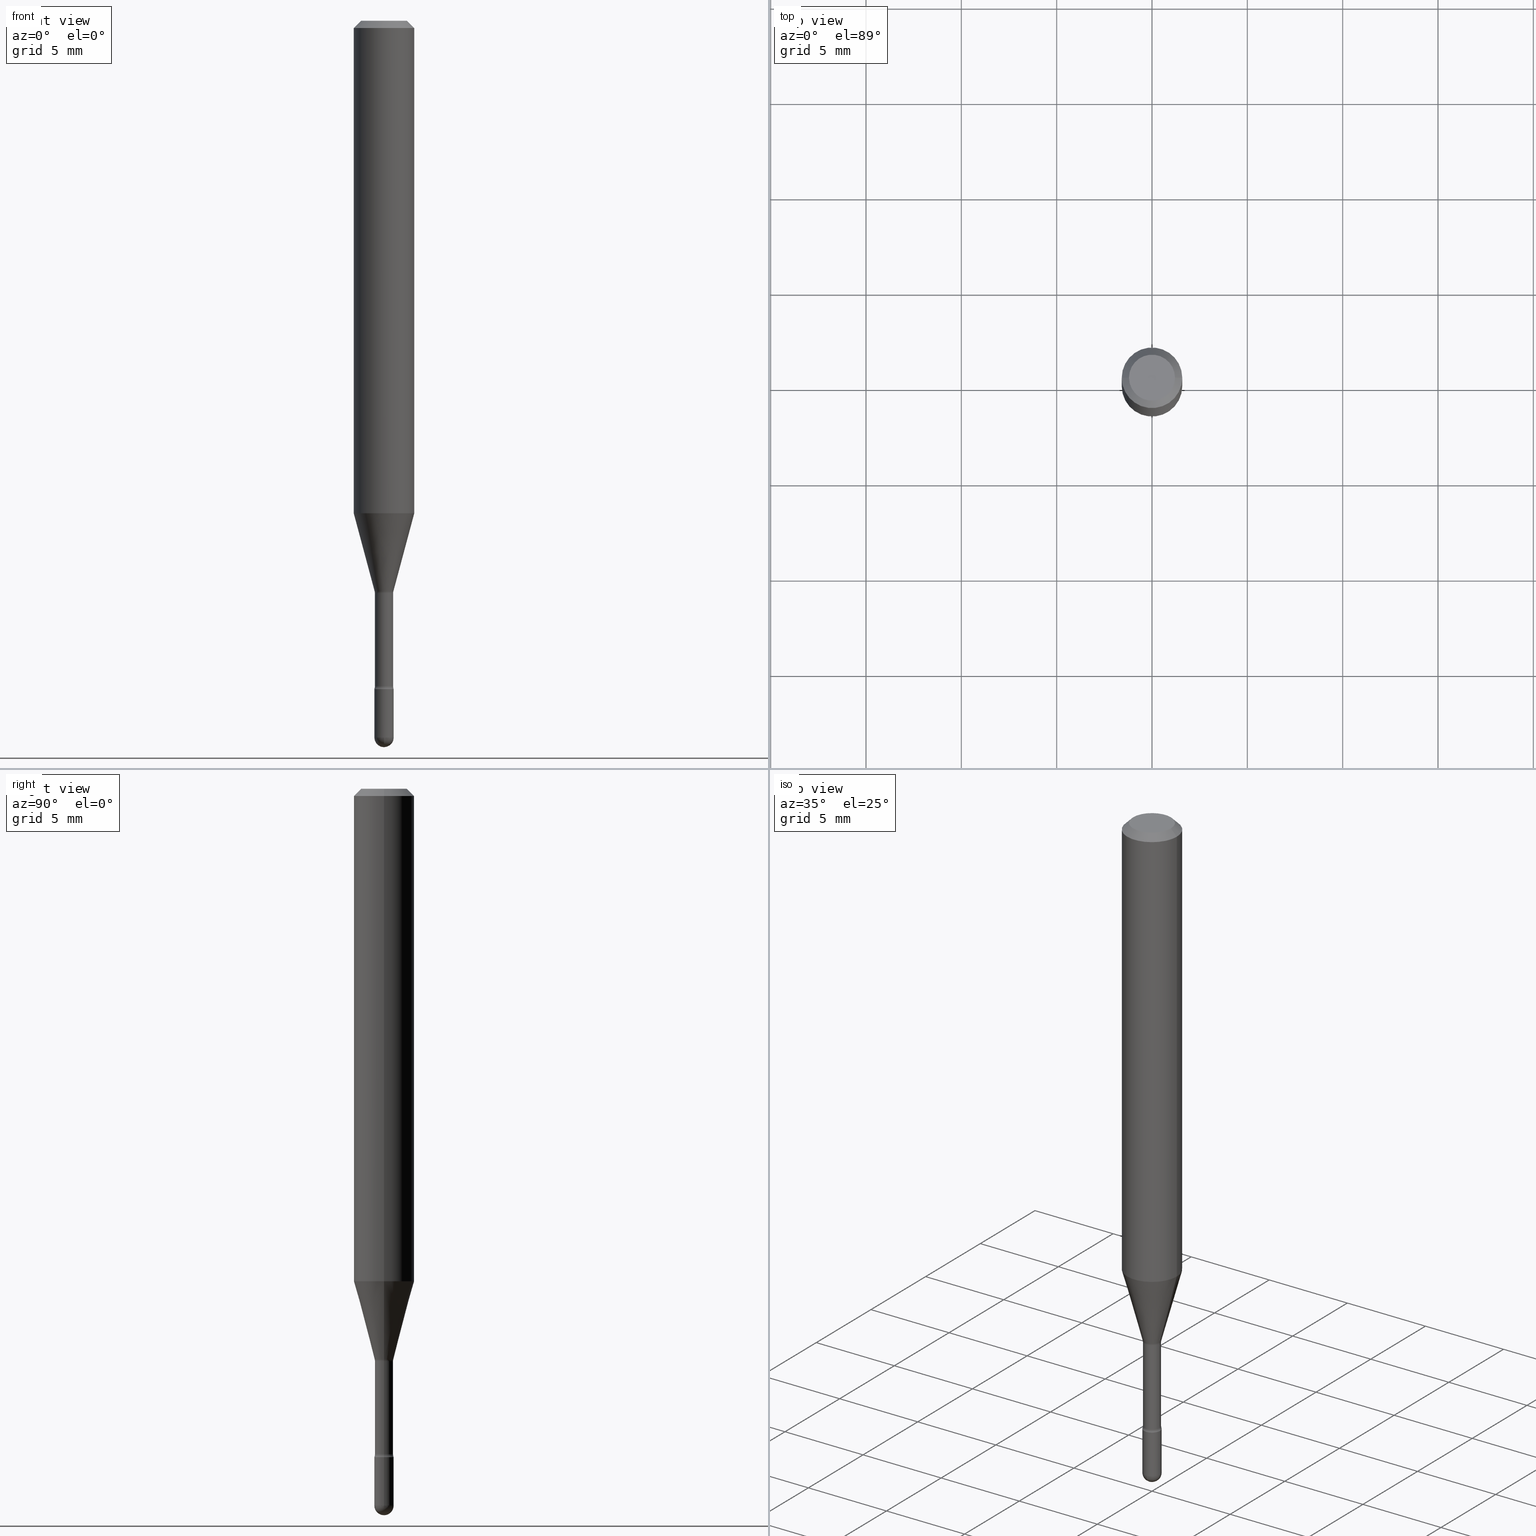
[diagram: canonical four-view strip — front | top / right | iso, engineering-drawing reading convention]
A machine part, canonical four-view strip (front | top / right | iso — engineering-drawing reading convention). The complete STEP part file that produces these views, byte-faithful:
ISO-10303-21;
HEADER;
FILE_DESCRIPTION (( 'STEP AP203' ),
    '1' );
FILE_NAME ('09313.STEP',
    '2024-04-09T22:23:41',
    ( '' ),
    ( '' ),
    'SwSTEP 2.0',
    'SolidWorks 2023',
    '' );
FILE_SCHEMA (( 'CONFIG_CONTROL_DESIGN' ));
ENDSEC;

DATA;
#1 = CARTESIAN_POINT ( 'NONE',  ( 1.396592535537590876E-16, 0.01999999999999518135, -1.380000000000000115 ) ) ;
#2 = UNCERTAINTY_MEASURE_WITH_UNIT (LENGTH_MEASURE( 1.000000000000000082E-05 ), #105, 'distance_accuracy_value', 'NONE');
#3 = ADVANCED_FACE ( 'NONE', ( #93 ), #226, .T. ) ;
#4 = DIRECTION ( 'NONE',  ( -0.2588190451025211281, 5.211531920934548675E-15, 0.9659258262890682012 ) ) ;
#5 = DIRECTION ( 'NONE',  ( -2.445468806185136597E-29, 3.491481338843145583E-15, 1.000000000000000000 ) ) ;
#6 = DIRECTION ( 'NONE',  ( -2.445468806185136597E-29, 3.491481338843145583E-15, 1.000000000000000000 ) ) ;
#7 = DIRECTION ( 'NONE',  ( 1.000000000000000000, -6.982962677686257244E-15, 4.883557194083109538E-29 ) ) ;
#8 = EDGE_CURVE ( 'NONE', #160, #27, #496, .T. ) ;
#9 = VECTOR ( 'NONE', #503, 39.37007874015748143 ) ;
#10 = DIRECTION ( 'NONE',  ( 2.445468806185136597E-29, -3.491481338843145583E-15, -1.000000000000000000 ) ) ;
#11 = AXIS2_PLACEMENT_3D ( 'NONE', #231, #187, #324 ) ;
#12 = ORIENTED_EDGE ( 'NONE', *, *, #63, .T. ) ;
#13 = CARTESIAN_POINT ( 'NONE',  ( 3.619293833154002365E-29, -5.167392381487854879E-15, -1.479999999999999982 ) ) ;
#14 = CARTESIAN_POINT ( 'NONE',  ( 2.890482472440055862E-29, -4.126842913412988651E-15, -1.181974787463810905 ) ) ;
#15 = ORIENTED_EDGE ( 'NONE', *, *, #209, .T. ) ;
#16 = CARTESIAN_POINT ( 'NONE',  ( 2.890482472440055862E-29, -4.126842913412988651E-15, -1.181974787463810905 ) ) ;
#17 = EDGE_CURVE ( 'NONE', #437, #112, #497, .T. ) ;
#18 = AXIS2_PLACEMENT_3D ( 'NONE', #335, #543, #62 ) ;
#19 = DIRECTION ( 'NONE',  ( 7.105427357601001859E-15, 1.000000000000000000, -3.491481338843145583E-15 ) ) ;
#20 = CONICAL_SURFACE ( 'NONE', #345, 0.06250000000000000000, 0.7853981633974483900 ) ;
#21 = CIRCLE ( 'NONE', #380, 0.04749999999999999362 ) ;
#22 = APPROVAL_DATE_TIME ( #418, #150 ) ;
#23 = LINE ( 'NONE', #371, #86 ) ;
#24 = APPROVAL_DATE_TIME ( #155, #484 ) ;
#25 = ORIENTED_EDGE ( 'NONE', *, *, #189, .F. ) ;
#26 = CARTESIAN_POINT ( 'NONE',  ( -1.169113584055446105E-44, 1.669184350826100908E-30, 4.780733988912460139E-16 ) ) ;
#27 = VERTEX_POINT ( 'NONE', #143 ) ;
#28 = CIRCLE ( 'NONE', #314, 0.02000000000000000042 ) ;
#29 = CC_DESIGN_SECURITY_CLASSIFICATION ( #547, ( #262 ) ) ;
#30 = DIRECTION ( 'NONE',  ( 2.438088387897960049E-29, -3.491481338843145188E-15, -1.000000000000000000 ) ) ;
#31 = ORIENTED_EDGE ( 'NONE', *, *, #63, .F. ) ;
#32 = ORIENTED_EDGE ( 'NONE', *, *, #234, .T. ) ;
#33 = PERSON_AND_ORGANIZATION_ROLE ( 'classification_officer' ) ;
#34 = EDGE_LOOP ( 'NONE', ( #545, #524, #340, #247 ) ) ;
#35 = DATE_AND_TIME ( #75, #393 ) ;
#36 = CARTESIAN_POINT ( 'NONE',  ( -0.04749999999999999362, 3.578768372314208041E-16, -8.274703207154778150E-17 ) ) ;
#37 = CC_DESIGN_PERSON_AND_ORGANIZATION_ASSIGNMENT ( #99, #373, ( #98 ) ) ;
#38 = ORIENTED_EDGE ( 'NONE', *, *, #360, .T. ) ;
#39 = DIRECTION ( 'NONE',  ( -2.445468806185136597E-29, 3.491481338843145583E-15, 1.000000000000000000 ) ) ;
#40 = EDGE_LOOP ( 'NONE', ( #338, #159, #50, #477 ) ) ;
#41 = CARTESIAN_POINT ( 'NONE',  ( 3.619293833154002365E-29, -5.167392381487854879E-15, -1.479999999999999982 ) ) ;
#42 = ORIENTED_EDGE ( 'NONE', *, *, #254, .F. ) ;
#43 = DIRECTION ( 'NONE',  ( 1.000000000000000000, -6.982962677686261977E-15, 0.000000000000000000 ) ) ;
#44 = DIRECTION ( 'NONE',  ( -2.445468806185136597E-29, 3.491481338843145583E-15, 1.000000000000000000 ) ) ;
#45 = CIRCLE ( 'NONE', #498, 0.06250000000000000000 ) ;
#46 = AXIS2_PLACEMENT_3D ( 'NONE', #94, #428, #291 ) ;
#47 = CARTESIAN_POINT ( 'NONE',  ( 2.023552857353652888E-45, -2.889097183224559242E-31, -8.274703207154537794E-17 ) ) ;
#48 = CARTESIAN_POINT ( 'NONE',  ( -0.02000000000000000042, -4.850709767393677259E-15, -1.380000000000000115 ) ) ;
#49 = PLANE ( 'NONE',  #346 ) ;
#50 = ORIENTED_EDGE ( 'NONE', *, *, #478, .T. ) ;
#51 = CIRCLE ( 'NONE', #378, 0.01880000000000000421 ) ;
#52 = AXIS2_PLACEMENT_3D ( 'NONE', #84, #451, #43 ) ;
#53 = CARTESIAN_POINT ( 'NONE',  ( -0.06250000000000000000, -3.106430912699308178E-15, -1.016909379709240335 ) ) ;
#54 = DIRECTION ( 'NONE',  ( 0.2588190451025211281, 1.565188264969623940E-15, 0.9659258262890682012 ) ) ;
#55 = CARTESIAN_POINT ( 'NONE',  ( 2.880988463921383680E-29, -4.113287985421298854E-15, -1.178092501787272983 ) ) ;
#56 = DIRECTION ( 'NONE',  ( 1.000000000000000000, -6.982962677686266711E-15, 0.000000000000000000 ) ) ;
#57 = DIRECTION ( 'NONE',  ( -1.000000000000000000, 6.982962677686265922E-15, -4.883557194083112340E-29 ) ) ;
#58 = COORDINATED_UNIVERSAL_TIME_OFFSET ( 5, 0, .BEHIND. ) ;
#59 = FACE_OUTER_BOUND ( 'NONE', #435, .T. ) ;
#60 = AXIS2_PLACEMENT_3D ( 'NONE', #16, #191, #329 ) ;
#61 =( NAMED_UNIT ( * ) SI_UNIT ( $, .STERADIAN. ) SOLID_ANGLE_UNIT ( ) );
#62 = DIRECTION ( 'NONE',  ( 1.000000000000000000, -6.982962677686284065E-15, 0.000000000000000000 ) ) ;
#63 = EDGE_CURVE ( 'NONE', #437, #432, #306, .T. ) ;
#64 = PERSON_AND_ORGANIZATION ( #140, #290 ) ;
#65 = ORIENTED_EDGE ( 'NONE', *, *, #427, .F. ) ;
#66 = CARTESIAN_POINT ( 'NONE',  ( 2.486820166796023749E-29, -3.550520122549371189E-15, -1.016909379709240335 ) ) ;
#67 = ORIENTED_EDGE ( 'NONE', *, *, #334, .F. ) ;
#68 = CARTESIAN_POINT ( 'NONE',  ( 3.316907271900976096E-16, 0.04749999999999999362, 3.181781981480094004E-17 ) ) ;
#69 = EDGE_LOOP ( 'NONE', ( #300, #364 ) ) ;
#70 = AXIS2_PLACEMENT_3D ( 'NONE', #68, #30, #419 ) ;
#71 = ORIENTED_EDGE ( 'NONE', *, *, #420, .F. ) ;
#72 = DIRECTION ( 'NONE',  ( 1.000000000000000000, -6.982962677686258822E-15, 4.883557194083109538E-29 ) ) ;
#73 = APPLICATION_CONTEXT ( 'configuration controlled 3d designs of mechanical parts and assemblies' ) ;
#74 = ORIENTED_EDGE ( 'NONE', *, *, #372, .T. ) ;
#75 = CALENDAR_DATE ( 2024, 9, 4 ) ;
#76 = LINE ( 'NONE', #392, #366 ) ;
#77 = ORIENTED_EDGE ( 'NONE', *, *, #278, .T. ) ;
#78 = FACE_OUTER_BOUND ( 'NONE', #444, .T. ) ;
#79 = AXIS2_PLACEMENT_3D ( 'NONE', #551, #471, #56 ) ;
#80 = LOCAL_TIME ( 18, 23, 41.00000000000000000, #377 ) ;
#81 = VERTEX_POINT ( 'NONE', #413 ) ;
#82 = CARTESIAN_POINT ( 'NONE',  ( 3.619293833154002365E-29, -5.167392381487854879E-15, -1.479999999999999982 ) ) ;
#83 = ADVANCED_FACE ( 'NONE', ( #188 ), #461, .T. ) ;
#84 = CARTESIAN_POINT ( 'NONE',  ( 2.880988463921383680E-29, -4.113287985421298854E-15, -1.178092501787272983 ) ) ;
#85 = CARTESIAN_POINT ( 'NONE',  ( 3.374746952535488593E-29, -4.818244247603541543E-15, -1.380000000000000115 ) ) ;
#86 = VECTOR ( 'NONE', #288, 39.37007874015748143 ) ;
#87 = CIRCLE ( 'NONE', #79, 0.06250000000000000000 ) ;
#88 = DIRECTION ( 'NONE',  ( 1.000000000000000000, -6.982962677686284065E-15, 0.000000000000000000 ) ) ;
#89 = DIRECTION ( 'NONE',  ( 6.982962677686265922E-15, 1.000000000000000000, 0.000000000000000000 ) ) ;
#90 = ORIENTED_EDGE ( 'NONE', *, *, #372, .F. ) ;
#91 = CARTESIAN_POINT ( 'NONE',  ( 2.890482472440055862E-29, -4.126842913412987863E-15, -1.181974787463810683 ) ) ;
#92 = AXIS2_PLACEMENT_3D ( 'NONE', #91, #273, #283 ) ;
#93 = FACE_OUTER_BOUND ( 'NONE', #244, .T. ) ;
#94 = CARTESIAN_POINT ( 'NONE',  ( 0.000000000000000000, 0.000000000000000000, 0.000000000000000000 ) ) ;
#95 = CARTESIAN_POINT ( 'NONE',  ( 0.02000000000000000042, -1.396592535537253145E-16, 9.752353551591871936E-31 ) ) ;
#96 = ORIENTED_EDGE ( 'NONE', *, *, #382, .F. ) ;
#97 = DIRECTION ( 'NONE',  ( -2.445468806185136597E-29, 3.491481338843145583E-15, 1.000000000000000000 ) ) ;
#98 = PRODUCT ( '09313', '09313', '', ( #285 ) ) ;
#99 = PERSON_AND_ORGANIZATION ( #140, #290 ) ;
#100 = CARTESIAN_POINT ( 'NONE',  ( -0.06250000000000000000, 4.440892098500642925E-16, 4.780733988912429571E-16 ) ) ;
#101 = EDGE_CURVE ( 'NONE', #472, #107, #455, .T. ) ;
#102 = CARTESIAN_POINT ( 'NONE',  ( -0.01880000000000000421, -4.328698728913427470E-15, -1.181974787463810683 ) ) ;
#103 = CIRCLE ( 'NONE', #92, 0.01880000000000000421 ) ;
#104 = CIRCLE ( 'NONE', #124, 0.02000000000000003164 ) ;
#105 =( CONVERSION_BASED_UNIT ( 'INCH', #151 ) LENGTH_UNIT ( ) NAMED_UNIT ( #385 ) );
#106 = CYLINDRICAL_SURFACE ( 'NONE', #220, 0.06250000000000000000 ) ;
#107 = VERTEX_POINT ( 'NONE', #251 ) ;
#108 = APPROVAL_DATE_TIME ( #560, #246 ) ;
#109 = DIRECTION ( 'NONE',  ( -2.445468806185136597E-29, 3.491481338843145583E-15, 1.000000000000000000 ) ) ;
#110 = ORIENTED_EDGE ( 'NONE', *, *, #532, .F. ) ;
#111 = SHAPE_DEFINITION_REPRESENTATION ( #540, #268 ) ;
#112 = VERTEX_POINT ( 'NONE', #102 ) ;
#113 = FACE_OUTER_BOUND ( 'NONE', #408, .T. ) ;
#114 = ORIENTED_EDGE ( 'NONE', *, *, #531, .F. ) ;
#115 = AXIS2_PLACEMENT_3D ( 'NONE', #530, #492, #134 ) ;
#116 = ORIENTED_EDGE ( 'NONE', *, *, #120, .F. ) ;
#117 = DIRECTION ( 'NONE',  ( 1.000000000000000000, -6.982962677686265922E-15, 4.876176775795935793E-29 ) ) ;
#118 = VERTEX_POINT ( 'NONE', #196 ) ;
#119 = DATE_TIME_ROLE ( 'classification_date' ) ;
#120 = EDGE_CURVE ( 'NONE', #204, #336, #211, .T. ) ;
#121 = AXIS2_PLACEMENT_3D ( 'NONE', #55, #317, #233 ) ;
#122 = ORIENTED_EDGE ( 'NONE', *, *, #178, .F. ) ;
#123 = AXIS2_PLACEMENT_3D ( 'NONE', #157, #512, #296 ) ;
#124 = AXIS2_PLACEMENT_3D ( 'NONE', #145, #458, #462 ) ;
#125 = EDGE_CURVE ( 'NONE', #81, #550, #250, .T. ) ;
#126 = DIRECTION ( 'NONE',  ( -2.445468806185136597E-29, 3.491481338843145583E-15, 1.000000000000000000 ) ) ;
#127 = EDGE_CURVE ( 'NONE', #472, #112, #205, .T. ) ;
#128 = CARTESIAN_POINT ( 'NONE',  ( -1.169113584055446105E-44, 1.669184350826100908E-30, 4.780733988912460139E-16 ) ) ;
#129 = TOROIDAL_SURFACE ( 'NONE', #464, 0.03380000000000000365, 0.01499999999999998904 ) ;
#130 = CARTESIAN_POINT ( 'NONE',  ( 0.01931111260566397911, -4.248136764011247491E-15, -1.178092501787272983 ) ) ;
#131 = CC_DESIGN_APPROVAL ( #246, ( #547 ) ) ;
#132 = ADVANCED_FACE ( 'NONE', ( #468 ), #546, .T. ) ;
#133 = ORIENTED_EDGE ( 'NONE', *, *, #127, .T. ) ;
#134 = DIRECTION ( 'NONE',  ( 1.000000000000000000, -6.982962677686243045E-15, 0.000000000000000000 ) ) ;
#135 = ORIENTED_EDGE ( 'NONE', *, *, #185, .T. ) ;
#136 = FACE_OUTER_BOUND ( 'NONE', #388, .T. ) ;
#137 = CARTESIAN_POINT ( 'NONE',  ( 3.619293833154002365E-29, -5.167392381487854879E-15, -1.479999999999999982 ) ) ;
#138 = EDGE_CURVE ( 'NONE', #533, #160, #237, .T. ) ;
#139 = ORIENTED_EDGE ( 'NONE', *, *, #189, .T. ) ;
#140 = PERSON ( 'UNSPECIFIED', 'UNSPECIFIED', 'UNSPECIFIED', ('UNSPECIFIED'), ('UNSPECIFIED'), ('UNSPECIFIED') ) ;
#141 = DIRECTION ( 'NONE',  ( 1.000000000000000000, -6.982962677686258033E-15, 0.000000000000000000 ) ) ;
#142 = AXIS2_PLACEMENT_3D ( 'NONE', #400, #350, #436 ) ;
#143 = CARTESIAN_POINT ( 'NONE',  ( 0.06250000000000000000, -4.888073874380391431E-16, -0.01500000000000008271 ) ) ;
#144 = EDGE_CURVE ( 'NONE', #160, #533, #483, .T. ) ;
#145 = CARTESIAN_POINT ( 'NONE',  ( 3.619293833154002365E-29, -5.167392381487854879E-15, -1.479999999999999982 ) ) ;
#146 = DIRECTION ( 'NONE',  ( -1.000000000000000000, 6.982962677686266711E-15, 0.000000000000000000 ) ) ;
#147 = CALENDAR_DATE ( 2024, 9, 4 ) ;
#148 = FACE_OUTER_BOUND ( 'NONE', #40, .T. ) ;
#149 = DIRECTION ( 'NONE',  ( -2.445468806185136597E-29, 3.491481338843145583E-15, 1.000000000000000000 ) ) ;
#150 = APPROVAL ( #287, 'UNSPECIFIED' ) ;
#151 = LENGTH_MEASURE_WITH_UNIT ( LENGTH_MEASURE( 0.02539999999999999897 ), #539 );
#152 = CARTESIAN_POINT ( 'NONE',  ( -1.169113584055446105E-44, 1.669184350826100908E-30, 4.780733988912460139E-16 ) ) ;
#153 = DIRECTION ( 'NONE',  ( 1.000000000000000000, -6.982962677686284065E-15, 0.000000000000000000 ) ) ;
#154 = CIRCLE ( 'NONE', #172, 0.01931111260566397911 ) ;
#155 = DATE_AND_TIME ( #421, #80 ) ;
#156 = DIRECTION ( 'NONE',  ( 1.000000000000000000, -6.982962677686267499E-15, 4.839830652673567839E-29 ) ) ;
#157 = CARTESIAN_POINT ( 'NONE',  ( 3.360370590718576112E-29, -4.797718613059664510E-15, -1.374121224617320447 ) ) ;
#158 = ORIENTED_EDGE ( 'NONE', *, *, #185, .F. ) ;
#159 = ORIENTED_EDGE ( 'NONE', *, *, #263, .F. ) ;
#160 = VERTEX_POINT ( 'NONE', #467 ) ;
#161 = CYLINDRICAL_SURFACE ( 'NONE', #142, 0.02000000000000000042 ) ;
#162 = TOROIDAL_SURFACE ( 'NONE', #60, 0.03380000000000000365, 0.01499999999999998904 ) ;
#163 = ORIENTED_EDGE ( 'NONE', *, *, #438, .T. ) ;
#164 = DIRECTION ( 'NONE',  ( -2.445468806185136597E-29, 3.491481338843145583E-15, 1.000000000000000000 ) ) ;
#165 = EDGE_CURVE ( 'NONE', #27, #303, #45, .T. ) ;
#166 = ORIENTED_EDGE ( 'NONE', *, *, #197, .T. ) ;
#167 = CARTESIAN_POINT ( 'NONE',  ( 3.360370590718576112E-29, -4.797718613059664510E-15, -1.374121224617320447 ) ) ;
#168 = DIRECTION ( 'NONE',  ( 1.000000000000000000, -6.982962677686267499E-15, 4.884662768193073002E-29 ) ) ;
#169 = ADVANCED_FACE ( 'NONE', ( #341 ), #106, .T. ) ;
#170 = AXIS2_PLACEMENT_3D ( 'NONE', #493, #57, #89 ) ;
#171 = EDGE_LOOP ( 'NONE', ( #508, #139, #555, #553 ) ) ;
#172 = AXIS2_PLACEMENT_3D ( 'NONE', #526, #126, #312 ) ;
#173 = CARTESIAN_POINT ( 'NONE',  ( -0.01931111260566397911, -3.541252595153304499E-15, -1.178092501787272983 ) ) ;
#174 = FACE_OUTER_BOUND ( 'NONE', #198, .T. ) ;
#175 = ADVANCED_FACE ( 'NONE', ( #514 ), #504, .F. ) ;
#176 = ADVANCED_FACE ( 'NONE', ( #113 ), #391, .F. ) ;
#177 = DIRECTION ( 'NONE',  ( 1.000000000000000000, -6.982962677686267499E-15, 4.839830652673567839E-29 ) ) ;
#178 = EDGE_CURVE ( 'NONE', #442, #351, #245, .T. ) ;
#179 = CARTESIAN_POINT ( 'NONE',  ( 0.04749999999999999362, -4.035134999187581581E-16, -8.274703207154280181E-17 ) ) ;
#180 = CARTESIAN_POINT ( 'NONE',  ( -0.02000000000000000042, 1.421085471520200401E-16, -9.837870180509812545E-31 ) ) ;
#181 = CC_DESIGN_APPROVAL ( #150, ( #405 ) ) ;
#182 = DIRECTION ( 'NONE',  ( 1.000000000000000000, -6.982962677686259611E-15, 0.000000000000000000 ) ) ;
#183 = EDGE_LOOP ( 'NONE', ( #31, #397, #210, #429 ) ) ;
#184 = LINE ( 'NONE', #276, #529 ) ;
#185 = EDGE_CURVE ( 'NONE', #253, #515, #528, .T. ) ;
#186 = ORIENTED_EDGE ( 'NONE', *, *, #360, .F. ) ;
#187 = DIRECTION ( 'NONE',  ( -2.445468806185136597E-29, 3.491481338843145583E-15, 1.000000000000000000 ) ) ;
#188 = FACE_OUTER_BOUND ( 'NONE', #425, .T. ) ;
#189 = EDGE_CURVE ( 'NONE', #472, #442, #401, .T. ) ;
#190 = CLOSED_SHELL ( 'NONE', ( #215, #83, #518, #240, #259 ) ) ;
#191 = DIRECTION ( 'NONE',  ( -2.445468806185136597E-29, 3.491481338843145583E-15, 1.000000000000000000 ) ) ;
#192 = APPLICATION_CONTEXT ( 'configuration controlled 3d designs of mechanical parts and assemblies' ) ;
#193 = AXIS2_PLACEMENT_3D ( 'NONE', #363, #321, #495 ) ;
#194 = PERSON_AND_ORGANIZATION_ROLE ( 'creator' ) ;
#195 = CYLINDRICAL_SURFACE ( 'NONE', #416, 0.01880000000000000768 ) ;
#196 = CARTESIAN_POINT ( 'NONE',  ( 0.02000000000000000736, -4.957903501157267351E-15, -1.380000000000000115 ) ) ;
#197 = EDGE_CURVE ( 'NONE', #107, #118, #227, .T. ) ;
#198 = EDGE_LOOP ( 'NONE', ( #292, #509, #298, #74, #386 ) ) ;
#199 = DIRECTION ( 'NONE',  ( -2.445468806185136597E-29, 3.491481338843145583E-15, 1.000000000000000000 ) ) ;
#200 = DATE_AND_TIME ( #147, #505 ) ;
#201 = CLOSED_SHELL ( 'NONE', ( #313, #293, #176, #406, #450, #132, #485, #169, #3, #402, #482, #175, #412, #422 ) ) ;
#202 = DIRECTION ( 'NONE',  ( -2.445468806185136597E-29, 3.491481338843145583E-15, 1.000000000000000000 ) ) ;
#203 = AXIS2_PLACEMENT_3D ( 'NONE', #85, #480, #305 ) ;
#204 = VERTEX_POINT ( 'NONE', #396 ) ;
#205 = LINE ( 'NONE', #424, #9 ) ;
#206 = EDGE_LOOP ( 'NONE', ( #389, #186, #469, #77 ) ) ;
#207 = COORDINATED_UNIVERSAL_TIME_OFFSET ( 5, 0, .BEHIND. ) ;
#208 = FACE_OUTER_BOUND ( 'NONE', #398, .T. ) ;
#209 = EDGE_CURVE ( 'NONE', #336, #204, #280, .T. ) ;
#210 = ORIENTED_EDGE ( 'NONE', *, *, #325, .T. ) ;
#211 = CIRCLE ( 'NONE', #279, 0.02000000000000000042 ) ;
#212 = AXIS2_PLACEMENT_3D ( 'NONE', #66, #97, #330 ) ;
#213 = CIRCLE ( 'NONE', #362, 0.02000000000000003164 ) ;
#214 = ORIENTED_EDGE ( 'NONE', *, *, #320, .F. ) ;
#215 = ADVANCED_FACE ( 'NONE', ( #208 ), #161, .T. ) ;
#216 = EDGE_LOOP ( 'NONE', ( #256, #475, #295, #42 ) ) ;
#217 = DIRECTION ( 'NONE',  ( 1.000000000000000000, -6.982962677686284065E-15, 0.000000000000000000 ) ) ;
#218 = EDGE_LOOP ( 'NONE', ( #65, #394, #562, #96 ) ) ;
#219 = DIRECTION ( 'NONE',  ( 1.000000000000000000, -6.982962677686267499E-15, 4.884662768193073002E-29 ) ) ;
#220 = AXIS2_PLACEMENT_3D ( 'NONE', #26, #199, #375 ) ;
#221 = DIRECTION ( 'NONE',  ( -2.445468806185136597E-29, 3.491481338843145583E-15, 1.000000000000000000 ) ) ;
#222 = DIRECTION ( 'NONE',  ( -2.438088387897960049E-29, 3.491481338843145188E-15, 1.000000000000000000 ) ) ;
#223 = DIRECTION ( 'NONE',  ( -2.445468806185136597E-29, 3.491481338843145583E-15, 1.000000000000000000 ) ) ;
#224 = DIRECTION ( 'NONE',  ( -2.438088387897960049E-29, 3.491481338843145188E-15, 1.000000000000000000 ) ) ;
#225 = ORIENTED_EDGE ( 'NONE', *, *, #427, .T. ) ;
#226 = CONICAL_SURFACE ( 'NONE', #270, 0.06250000000000000000, 0.7853981633974483900 ) ;
#227 = CIRCLE ( 'NONE', #289, 0.02000000000000000042 ) ;
#228 = DIRECTION ( 'NONE',  ( -2.445468806185136597E-29, 3.491481338843145583E-15, 1.000000000000000000 ) ) ;
#229 = CARTESIAN_POINT ( 'NONE',  ( 2.890482472440055862E-29, -4.126842913412987863E-15, -1.181974787463810683 ) ) ;
#230 = ORIENTED_EDGE ( 'NONE', *, *, #499, .F. ) ;
#231 = CARTESIAN_POINT ( 'NONE',  ( 3.619293833154002365E-29, -5.167392381487854879E-15, -1.479999999999999982 ) ) ;
#232 = CARTESIAN_POINT ( 'NONE',  ( 3.669058375566884284E-29, -5.235997361465570604E-15, -1.500000000000000222 ) ) ;
#233 = DIRECTION ( 'NONE',  ( 1.000000000000000000, -6.982962677686261977E-15, 0.000000000000000000 ) ) ;
#234 = EDGE_CURVE ( 'NONE', #550, #431, #474, .T. ) ;
#235 = CARTESIAN_POINT ( 'NONE',  ( -0.03380000000000002447, -4.557555168372750276E-15, -1.374121224617320447 ) ) ;
#236 = CALENDAR_DATE ( 2024, 9, 4 ) ;
#237 = CIRCLE ( 'NONE', #252, 0.06250000000000000000 ) ;
#238 = CC_DESIGN_DATE_AND_TIME_ASSIGNMENT ( #200, #328, ( #405 ) ) ;
#239 = CARTESIAN_POINT ( 'NONE',  ( 3.374746952535488593E-29, -4.818244247603541543E-15, -1.380000000000000115 ) ) ;
#240 = ADVANCED_FACE ( 'NONE', ( #344 ), #489, .T. ) ;
#241 = APPLICATION_PROTOCOL_DEFINITION ( 'international standard', 'config_control_design', 1994, #192 ) ;
#242 = DIRECTION ( 'NONE',  ( -2.445468806185136597E-29, 3.491481338843145583E-15, 1.000000000000000000 ) ) ;
#243 = COORDINATED_UNIVERSAL_TIME_OFFSET ( 5, 0, .BEHIND. ) ;
#244 = EDGE_LOOP ( 'NONE', ( #71, #158, #411, #494 ) ) ;
#245 = LINE ( 'NONE', #255, #409 ) ;
#246 = APPROVAL ( #390, 'UNSPECIFIED' ) ;
#247 = ORIENTED_EDGE ( 'NONE', *, *, #304, .F. ) ;
#248 = PERSON_AND_ORGANIZATION ( #140, #290 ) ;
#249 = MANIFOLD_SOLID_BREP ( 'Body-Move/Copy2[2]', #201 ) ;
#250 = CIRCLE ( 'NONE', #18, 0.02000000000000000042 ) ;
#251 = CARTESIAN_POINT ( 'NONE',  ( -0.02000000000000000736, -4.676135700451519802E-15, -1.380000000000000115 ) ) ;
#252 = AXIS2_PLACEMENT_3D ( 'NONE', #337, #149, #552 ) ;
#253 = VERTEX_POINT ( 'NONE', #36 ) ;
#254 = EDGE_CURVE ( 'NONE', #253, #303, #76, .T. ) ;
#255 = CARTESIAN_POINT ( 'NONE',  ( 0.01880000000000000768, -1.312796983405001992E-16, 4.780733988912470000E-16 ) ) ;
#256 = ORIENTED_EDGE ( 'NONE', *, *, #438, .F. ) ;
#257 = DIRECTION ( 'NONE',  ( 1.000000000000000000, -6.982962677686258033E-15, 0.000000000000000000 ) ) ;
#258 = ORIENTED_EDGE ( 'NONE', *, *, #331, .F. ) ;
#259 = ADVANCED_FACE ( 'NONE', ( #174 ), #353, .T. ) ;
#260 = CYLINDRICAL_SURFACE ( 'NONE', #307, 0.01880000000000000768 ) ;
#261 = AXIS2_PLACEMENT_3D ( 'NONE', #82, #520, #301 ) ;
#262 = PRODUCT_DEFINITION_FORMATION_WITH_SPECIFIED_SOURCE ( 'ANY', '', #98, .NOT_KNOWN. ) ;
#263 = EDGE_CURVE ( 'NONE', #432, #437, #154, .T. ) ;
#264 = ORIENTED_EDGE ( 'NONE', *, *, #304, .T. ) ;
#265 = CARTESIAN_POINT ( 'NONE',  ( 3.374746952535488593E-29, -4.818244247603541543E-15, -1.380000000000000115 ) ) ;
#266 = ORIENTED_EDGE ( 'NONE', *, *, #531, .T. ) ;
#267 = DIRECTION ( 'NONE',  ( -0.7071067811865475727, 2.468850131082257455E-15, -0.7071067811865474617 ) ) ;
#268 = ADVANCED_BREP_SHAPE_REPRESENTATION ( '09313', ( #443, #249, #46 ), #441 ) ;
#269 = CARTESIAN_POINT ( 'NONE',  ( -0.02000000000000000042, -4.850709767393677259E-15, -1.479999999999999982 ) ) ;
#270 = AXIS2_PLACEMENT_3D ( 'NONE', #322, #10, #319 ) ;
#271 = VECTOR ( 'NONE', #453, 39.37007874015748143 ) ;
#272 = DIRECTION ( 'NONE',  ( 1.000000000000000000, -6.982962677686266711E-15, 4.852736867747366207E-29 ) ) ;
#273 = DIRECTION ( 'NONE',  ( -2.445468806185136597E-29, 3.491481338843145583E-15, 1.000000000000000000 ) ) ;
#274 = FACE_OUTER_BOUND ( 'NONE', #383, .T. ) ;
#275 = CARTESIAN_POINT ( 'NONE',  ( 0.01931111260566397911, -4.248136764011247491E-15, -1.178092501787272983 ) ) ;
#276 = CARTESIAN_POINT ( 'NONE',  ( -0.01931111260566397911, -3.976074277607301213E-15, -1.178092501787272983 ) ) ;
#277 = ORIENTED_EDGE ( 'NONE', *, *, #525, .T. ) ;
#278 = EDGE_CURVE ( 'NONE', #118, #107, #522, .T. ) ;
#279 = AXIS2_PLACEMENT_3D ( 'NONE', #239, #109, #153 ) ;
#280 = CIRCLE ( 'NONE', #447, 0.02000000000000000042 ) ;
#281 = PERSON_AND_ORGANIZATION ( #140, #290 ) ;
#282 = AXIS2_PLACEMENT_3D ( 'NONE', #128, #6, #272 ) ;
#283 = DIRECTION ( 'NONE',  ( 1.000000000000000000, -6.982962677686259611E-15, 0.000000000000000000 ) ) ;
#284 = CARTESIAN_POINT ( 'NONE',  ( -0.03380000000000000365, -3.886679468726075206E-15, -1.181974787463810905 ) ) ;
#285 = MECHANICAL_CONTEXT ( 'NONE', #73, 'mechanical' ) ;
#286 = ORIENTED_EDGE ( 'NONE', *, *, #101, .T. ) ;
#287 = APPROVAL_STATUS ( 'not_yet_approved' ) ;
#288 = DIRECTION ( 'NONE',  ( 0.7071067811865475727, -7.319954787623256045E-15, -0.7071067811865474617 ) ) ;
#289 = AXIS2_PLACEMENT_3D ( 'NONE', #265, #554, #516 ) ;
#290 = ORGANIZATION ( 'UNSPECIFIED', 'UNSPECIFIED', '' ) ;
#291 = DIRECTION ( 'NONE',  ( 1.000000000000000000, 0.000000000000000000, 0.000000000000000000 ) ) ;
#292 = ORIENTED_EDGE ( 'NONE', *, *, #463, .F. ) ;
#293 = ADVANCED_FACE ( 'NONE', ( #78 ), #260, .T. ) ;
#294 = ORIENTED_EDGE ( 'NONE', *, *, #165, .F. ) ;
#295 = ORIENTED_EDGE ( 'NONE', *, *, #165, .T. ) ;
#296 = DIRECTION ( 'NONE',  ( 1.000000000000000000, -6.982962677686258822E-15, 4.883557194083109538E-29 ) ) ;
#297 = PERSON_AND_ORGANIZATION_ROLE ( 'design_supplier' ) ;
#298 = ORIENTED_EDGE ( 'NONE', *, *, #125, .T. ) ;
#299 = CARTESIAN_POINT ( 'NONE',  ( 3.360370590718576112E-29, -4.797718613059664510E-15, -1.374121224617320447 ) ) ;
#300 = ORIENTED_EDGE ( 'NONE', *, *, #278, .F. ) ;
#301 = DIRECTION ( 'NONE',  ( 6.982962677686265922E-15, 1.000000000000000000, 0.000000000000000000 ) ) ;
#302 = DESIGN_CONTEXT ( 'detailed design', #192, 'design' ) ;
#303 = VERTEX_POINT ( 'NONE', #359 ) ;
#304 = EDGE_CURVE ( 'NONE', #432, #160, #459, .T. ) ;
#305 = DIRECTION ( 'NONE',  ( 1.000000000000000000, -6.982962677686284065E-15, 0.000000000000000000 ) ) ;
#306 = CIRCLE ( 'NONE', #121, 0.01931111260566397911 ) ;
#307 = AXIS2_PLACEMENT_3D ( 'NONE', #440, #39, #177 ) ;
#308 = CONICAL_SURFACE ( 'NONE', #52, 0.01931111260566397911, 0.2617993877991497964 ) ;
#309 = EDGE_LOOP ( 'NONE', ( #110, #266, #486, #481 ) ) ;
#310 = CARTESIAN_POINT ( 'NONE',  ( 2.023552857353652888E-45, -2.889097183224559242E-31, -8.274703207154537794E-17 ) ) ;
#311 = CC_DESIGN_DATE_AND_TIME_ASSIGNMENT ( #35, #119, ( #547 ) ) ;
#312 = DIRECTION ( 'NONE',  ( 1.000000000000000000, -6.982962677686261977E-15, 0.000000000000000000 ) ) ;
#313 = ADVANCED_FACE ( 'NONE', ( #452 ), #129, .F. ) ;
#314 = AXIS2_PLACEMENT_3D ( 'NONE', #137, #221, #88 ) ;
#315 = CIRCLE ( 'NONE', #11, 0.02000000000000000042 ) ;
#316 = CARTESIAN_POINT ( 'NONE',  ( 0.01880000000000000768, -4.928998311400166312E-15, -1.374121224617320447 ) ) ;
#317 = DIRECTION ( 'NONE',  ( -2.445468806185136597E-29, 3.491481338843145583E-15, 1.000000000000000000 ) ) ;
#318 = CARTESIAN_POINT ( 'NONE',  ( 3.374746952535488593E-29, -4.818244247603541543E-15, -1.380000000000000115 ) ) ;
#319 = DIRECTION ( 'NONE',  ( -1.000000000000000000, 6.982962677686266711E-15, 0.000000000000000000 ) ) ;
#320 = EDGE_CURVE ( 'NONE', #517, #81, #28, .T. ) ;
#321 = DIRECTION ( 'NONE',  ( -6.982962677686266711E-15, -1.000000000000000000, 3.491481338843145583E-15 ) ) ;
#322 = CARTESIAN_POINT ( 'NONE',  ( 3.668203209277725232E-31, -5.237222008264747365E-17, -0.01500000000000008271 ) ) ;
#323 = VECTOR ( 'NONE', #404, 39.37007874015748143 ) ;
#324 = DIRECTION ( 'NONE',  ( 1.000000000000000000, -6.982962677686284065E-15, 0.000000000000000000 ) ) ;
#325 = EDGE_CURVE ( 'NONE', #112, #351, #51, .T. ) ;
#326 = CIRCLE ( 'NONE', #115, 0.01499999999999998557 ) ;
#327 = DIRECTION ( 'NONE',  ( -1.000000000000000000, 7.105427357600982137E-15, 0.000000000000000000 ) ) ;
#328 = DATE_TIME_ROLE ( 'creation_date' ) ;
#329 = DIRECTION ( 'NONE',  ( 1.000000000000000000, -6.982962677686257244E-15, 4.883557194083109538E-29 ) ) ;
#330 = DIRECTION ( 'NONE',  ( 1.000000000000000000, -6.982962677686270655E-15, 0.000000000000000000 ) ) ;
#331 = EDGE_CURVE ( 'NONE', #442, #118, #456, .T. ) ;
#332 = APPROVAL_STATUS ( 'not_yet_approved' ) ;
#333 = APPROVAL_PERSON_ORGANIZATION ( #501, #150, #414 ) ;
#334 = EDGE_CURVE ( 'NONE', #351, #112, #103, .T. ) ;
#335 = CARTESIAN_POINT ( 'NONE',  ( 3.619293833154002365E-29, -5.167392381487854879E-15, -1.479999999999999982 ) ) ;
#336 = VERTEX_POINT ( 'NONE', #48 ) ;
#337 = CARTESIAN_POINT ( 'NONE',  ( 2.486820166796023749E-29, -3.550520122549371189E-15, -1.016909379709240335 ) ) ;
#338 = ORIENTED_EDGE ( 'NONE', *, *, #17, .F. ) ;
#339 = DIRECTION ( 'NONE',  ( -2.445468806185136597E-29, 3.491481338843145583E-15, 1.000000000000000000 ) ) ;
#340 = ORIENTED_EDGE ( 'NONE', *, *, #144, .F. ) ;
#341 = FACE_OUTER_BOUND ( 'NONE', #218, .T. ) ;
#342 = EDGE_LOOP ( 'NONE', ( #230, #12, #264, #479 ) ) ;
#343 = AXIS2_PLACEMENT_3D ( 'NONE', #41, #561, #217 ) ;
#344 = FACE_OUTER_BOUND ( 'NONE', #309, .T. ) ;
#345 = AXIS2_PLACEMENT_3D ( 'NONE', #379, #542, #146 ) ;
#346 = AXIS2_PLACEMENT_3D ( 'NONE', #318, #224, #454 ) ;
#347 = CC_DESIGN_PERSON_AND_ORGANIZATION_ASSIGNMENT ( #64, #194, ( #405 ) ) ;
#348 = VERTEX_POINT ( 'NONE', #232 ) ;
#349 = CARTESIAN_POINT ( 'NONE',  ( 3.374746952535488593E-29, -4.818244247603541543E-15, -1.380000000000000115 ) ) ;
#350 = DIRECTION ( 'NONE',  ( -2.445468806185136597E-29, 3.491481338843145583E-15, 1.000000000000000000 ) ) ;
#351 = VERTEX_POINT ( 'NONE', #365 ) ;
#352 = CC_DESIGN_PERSON_AND_ORGANIZATION_ASSIGNMENT ( #510, #544, ( #262 ) ) ;
#353 = CYLINDRICAL_SURFACE ( 'NONE', #556, 0.02000000000000000042 ) ;
#354 = AXIS2_PLACEMENT_3D ( 'NONE', #310, #565, #168 ) ;
#355 = VECTOR ( 'NONE', #466, 39.37007874015748143 ) ;
#356 = CARTESIAN_POINT ( 'NONE',  ( 0.06250000000000000000, -4.364351673553899931E-16, 4.780733988912490708E-16 ) ) ;
#357 = DIRECTION ( 'NONE',  ( -2.445468806185136877E-29, 3.491481338843145188E-15, 1.000000000000000000 ) ) ;
#358 = CARTESIAN_POINT ( 'NONE',  ( 0.000000000000000000, 0.000000000000000000, 0.000000000000000000 ) ) ;
#359 = CARTESIAN_POINT ( 'NONE',  ( -0.06250000000000000000, -1.357356961465946715E-15, -0.01500000000000008271 ) ) ;
#360 = EDGE_CURVE ( 'NONE', #442, #472, #564, .T. ) ;
#361 = VECTOR ( 'NONE', #54, 39.37007874015748143 ) ;
#362 = AXIS2_PLACEMENT_3D ( 'NONE', #13, #506, #367 ) ;
#363 = CARTESIAN_POINT ( 'NONE',  ( 0.03380000000000002447, -5.033742751565459681E-15, -1.374121224617320447 ) ) ;
#364 = ORIENTED_EDGE ( 'NONE', *, *, #197, .F. ) ;
#365 = CARTESIAN_POINT ( 'NONE',  ( 0.01880000000000000421, -4.258122611753489664E-15, -1.181974787463810683 ) ) ;
#366 = VECTOR ( 'NONE', #267, 39.37007874015748143 ) ;
#367 = DIRECTION ( 'NONE',  ( -7.105427357600999492E-15, -1.000000000000000000, 0.000000000000000000 ) ) ;
#368 = CC_DESIGN_APPROVAL ( #484, ( #262 ) ) ;
#369 = CARTESIAN_POINT ( 'NONE',  ( 2.880988463921383680E-29, -4.113287985421298854E-15, -1.178092501787272983 ) ) ;
#370 =( NAMED_UNIT ( * ) PLANE_ANGLE_UNIT ( ) SI_UNIT ( $, .RADIAN. ) );
#371 = CARTESIAN_POINT ( 'NONE',  ( 0.06250000000000000000, -4.811533449433681963E-16, -0.01500000000000008271 ) ) ;
#372 = EDGE_CURVE ( 'NONE', #550, #204, #500, .T. ) ;
#373 = PERSON_AND_ORGANIZATION_ROLE ( 'design_owner' ) ;
#374 = FACE_OUTER_BOUND ( 'NONE', #171, .T. ) ;
#375 = DIRECTION ( 'NONE',  ( 1.000000000000000000, -6.982962677686266711E-15, 4.852736867747366207E-29 ) ) ;
#376 = AXIS2_PLACEMENT_3D ( 'NONE', #284, #536, #460 ) ;
#377 = COORDINATED_UNIVERSAL_TIME_OFFSET ( 5, 0, .BEHIND. ) ;
#378 = AXIS2_PLACEMENT_3D ( 'NONE', #229, #446, #182 ) ;
#379 = CARTESIAN_POINT ( 'NONE',  ( 3.668203209277725232E-31, -5.237222008264747365E-17, -0.01500000000000008271 ) ) ;
#380 = AXIS2_PLACEMENT_3D ( 'NONE', #47, #228, #219 ) ;
#381 = DIRECTION ( 'NONE',  ( 1.000000000000000000, -6.982962677686266711E-15, 0.000000000000000000 ) ) ;
#382 = EDGE_CURVE ( 'NONE', #303, #27, #87, .T. ) ;
#383 = EDGE_LOOP ( 'NONE', ( #423, #15 ) ) ;
#384 = LINE ( 'NONE', #100, #355 ) ;
#385 = DIMENSIONAL_EXPONENTS ( 1.000000000000000000, 0.000000000000000000, 0.000000000000000000, 0.000000000000000000, 0.000000000000000000, 0.000000000000000000, 0.000000000000000000 ) ;
#386 = ORIENTED_EDGE ( 'NONE', *, *, #209, .F. ) ;
#387 = DIRECTION ( 'NONE',  ( 1.000000000000000000, -6.982962677686261977E-15, 0.000000000000000000 ) ) ;
#388 = EDGE_LOOP ( 'NONE', ( #549, #225, #294, #473 ) ) ;
#389 = ORIENTED_EDGE ( 'NONE', *, *, #101, .F. ) ;
#390 = APPROVAL_STATUS ( 'not_yet_approved' ) ;
#391 = TOROIDAL_SURFACE ( 'NONE', #430, 0.03380000000000002447, 0.01500000000000001679 ) ;
#392 = CARTESIAN_POINT ( 'NONE',  ( -0.06250000000000000000, 3.840629472727441958E-16, -0.01500000000000008271 ) ) ;
#393 = LOCAL_TIME ( 18, 23, 41.00000000000000000, #513 ) ;
#394 = ORIENTED_EDGE ( 'NONE', *, *, #138, .T. ) ;
#395 = CALENDAR_DATE ( 2024, 9, 4 ) ;
#396 = CARTESIAN_POINT ( 'NONE',  ( 0.02000000000000000042, -4.957903501157267351E-15, -1.380000000000000115 ) ) ;
#397 = ORIENTED_EDGE ( 'NONE', *, *, #17, .T. ) ;
#398 = EDGE_LOOP ( 'NONE', ( #277, #559, #116, #90, #32 ) ) ;
#399 = CYLINDRICAL_SURFACE ( 'NONE', #282, 0.06250000000000000000 ) ;
#400 = CARTESIAN_POINT ( 'NONE',  ( 0.000000000000000000, 0.000000000000000000, 0.000000000000000000 ) ) ;
#401 = CIRCLE ( 'NONE', #537, 0.01880000000000000768 ) ;
#402 = ADVANCED_FACE ( 'NONE', ( #59 ), #507, .F. ) ;
#403 = DIRECTION ( 'NONE',  ( 1.000000000000000000, -6.982962677686265922E-15, 4.876176775795935793E-29 ) ) ;
#404 = DIRECTION ( 'NONE',  ( -2.445468806185136877E-29, 3.491481338843145188E-15, 1.000000000000000000 ) ) ;
#405 = PRODUCT_DEFINITION ( 'UNKNOWN', '', #262, #302 ) ;
#406 = ADVANCED_FACE ( 'NONE', ( #415 ), #20, .T. ) ;
#407 = PLANE ( 'NONE',  #448 ) ;
#408 = EDGE_LOOP ( 'NONE', ( #25, #286, #166, #258 ) ) ;
#409 = VECTOR ( 'NONE', #434, 39.37007874015748143 ) ;
#410 = LINE ( 'NONE', #180, #566 ) ;
#411 = ORIENTED_EDGE ( 'NONE', *, *, #254, .T. ) ;
#412 = ADVANCED_FACE ( 'NONE', ( #374 ), #195, .T. ) ;
#413 = CARTESIAN_POINT ( 'NONE',  ( -1.421085471519839497E-16, -0.02000000000000518377, -1.479999999999999982 ) ) ;
#414 = APPROVAL_ROLE ( '' ) ;
#415 = FACE_OUTER_BOUND ( 'NONE', #216, .T. ) ;
#416 = AXIS2_PLACEMENT_3D ( 'NONE', #152, #339, #156 ) ;
#417 = LOCAL_TIME ( 18, 23, 41.00000000000000000, #58 ) ;
#418 = DATE_AND_TIME ( #236, #417 ) ;
#419 = DIRECTION ( 'NONE',  ( -1.000000000000000000, 6.982962677686265922E-15, -4.876176775795935793E-29 ) ) ;
#420 = EDGE_CURVE ( 'NONE', #515, #27, #23, .T. ) ;
#421 = CALENDAR_DATE ( 2024, 9, 4 ) ;
#422 = ADVANCED_FACE ( 'NONE', ( #148 ), #162, .F. ) ;
#423 = ORIENTED_EDGE ( 'NONE', *, *, #120, .T. ) ;
#424 = CARTESIAN_POINT ( 'NONE',  ( -0.01880000000000000768, 1.335820343229005412E-16, 4.780733988912451265E-16 ) ) ;
#425 = EDGE_LOOP ( 'NONE', ( #114, #511, #214, #563 ) ) ;
#426 = CC_DESIGN_PERSON_AND_ORGANIZATION_ASSIGNMENT ( #519, #33, ( #547 ) ) ;
#427 = EDGE_CURVE ( 'NONE', #533, #303, #384, .T. ) ;
#428 = DIRECTION ( 'NONE',  ( 0.000000000000000000, 0.000000000000000000, 1.000000000000000000 ) ) ;
#429 = ORIENTED_EDGE ( 'NONE', *, *, #478, .F. ) ;
#430 = AXIS2_PLACEMENT_3D ( 'NONE', #299, #476, #72 ) ;
#431 = VERTEX_POINT ( 'NONE', #527 ) ;
#432 = VERTEX_POINT ( 'NONE', #130 ) ;
#433 = PRODUCT_RELATED_PRODUCT_CATEGORY ( 'detail', '', ( #98 ) ) ;
#434 = DIRECTION ( 'NONE',  ( -2.445468806185136877E-29, 3.491481338843145188E-15, 1.000000000000000000 ) ) ;
#435 = EDGE_LOOP ( 'NONE', ( #135, #163 ) ) ;
#436 = DIRECTION ( 'NONE',  ( 1.000000000000000000, -6.982962677686265922E-15, 4.876176775795935793E-29 ) ) ;
#437 = VERTEX_POINT ( 'NONE', #173 ) ;
#438 = EDGE_CURVE ( 'NONE', #515, #253, #21, .T. ) ;
#439 = AXIS2_PLACEMENT_3D ( 'NONE', #535, #223, #141 ) ;
#440 = CARTESIAN_POINT ( 'NONE',  ( -1.169113584055446105E-44, 1.669184350826100908E-30, 4.780733988912460139E-16 ) ) ;
#441 =( GEOMETRIC_REPRESENTATION_CONTEXT ( 3 ) GLOBAL_UNCERTAINTY_ASSIGNED_CONTEXT ( ( #2 ) ) GLOBAL_UNIT_ASSIGNED_CONTEXT ( ( #105, #370, #61 ) ) REPRESENTATION_CONTEXT ( 'NONE', 'WORKASPACE' ) );
#442 = VERTEX_POINT ( 'NONE', #316 ) ;
#443 = MANIFOLD_SOLID_BREP ( 'Body-Move/Copy2[1]', #190 ) ;
#444 = EDGE_LOOP ( 'NONE', ( #38, #133, #67, #122 ) ) ;
#445 = CARTESIAN_POINT ( 'NONE',  ( -0.01880000000000000768, -4.670136139594142600E-15, -1.374121224617320447 ) ) ;
#446 = DIRECTION ( 'NONE',  ( -2.445468806185136597E-29, 3.491481338843145583E-15, 1.000000000000000000 ) ) ;
#447 = AXIS2_PLACEMENT_3D ( 'NONE', #349, #487, #558 ) ;
#448 = AXIS2_PLACEMENT_3D ( 'NONE', #1, #222, #403 ) ;
#449 = FACE_OUTER_BOUND ( 'NONE', #69, .T. ) ;
#450 = ADVANCED_FACE ( 'NONE', ( #136 ), #399, .T. ) ;
#451 = DIRECTION ( 'NONE',  ( -2.445468806185136597E-29, 3.491481338843145583E-15, 1.000000000000000000 ) ) ;
#452 = FACE_OUTER_BOUND ( 'NONE', #183, .T. ) ;
#453 = DIRECTION ( 'NONE',  ( -2.445468806185136877E-29, 3.491481338843145188E-15, 1.000000000000000000 ) ) ;
#454 = DIRECTION ( 'NONE',  ( 1.000000000000000000, -6.982962677686265922E-15, 4.876176775795935793E-29 ) ) ;
#455 = CIRCLE ( 'NONE', #521, 0.01500000000000001853 ) ;
#456 = CIRCLE ( 'NONE', #193, 0.01500000000000001853 ) ;
#457 = APPROVAL_PERSON_ORGANIZATION ( #502, #484, #465 ) ;
#458 = DIRECTION ( 'NONE',  ( 1.000000000000000000, -6.982962677686265922E-15, 4.883557194083112340E-29 ) ) ;
#459 = LINE ( 'NONE', #275, #361 ) ;
#460 = DIRECTION ( 'NONE',  ( -1.000000000000000000, 7.105427357600997914E-15, 0.000000000000000000 ) ) ;
#461 = SPHERICAL_SURFACE ( 'NONE', #170, 0.02000000000000003164 ) ;
#462 = DIRECTION ( 'NONE',  ( 6.982962677686265922E-15, 1.000000000000000000, 0.000000000000000000 ) ) ;
#463 = EDGE_CURVE ( 'NONE', #517, #336, #410, .T. ) ;
#464 = AXIS2_PLACEMENT_3D ( 'NONE', #14, #5, #7 ) ;
#465 = APPROVAL_ROLE ( '' ) ;
#466 = DIRECTION ( 'NONE',  ( -2.445468806185136877E-29, 3.491481338843145188E-15, 1.000000000000000000 ) ) ;
#467 = CARTESIAN_POINT ( 'NONE',  ( 0.06250000000000000000, -3.986955289904762858E-15, -1.016909379709240335 ) ) ;
#468 = FACE_OUTER_BOUND ( 'NONE', #34, .T. ) ;
#469 = ORIENTED_EDGE ( 'NONE', *, *, #331, .T. ) ;
#470 = SECURITY_CLASSIFICATION_LEVEL ( 'unclassified' ) ;
#471 = DIRECTION ( 'NONE',  ( -2.445468806185136597E-29, 3.491481338843145583E-15, 1.000000000000000000 ) ) ;
#472 = VERTEX_POINT ( 'NONE', #445 ) ;
#473 = ORIENTED_EDGE ( 'NONE', *, *, #8, .F. ) ;
#474 = CIRCLE ( 'NONE', #343, 0.02000000000000000042 ) ;
#475 = ORIENTED_EDGE ( 'NONE', *, *, #420, .T. ) ;
#476 = DIRECTION ( 'NONE',  ( -2.445468806185136597E-29, 3.491481338843145583E-15, 1.000000000000000000 ) ) ;
#477 = ORIENTED_EDGE ( 'NONE', *, *, #334, .T. ) ;
#478 = EDGE_CURVE ( 'NONE', #432, #351, #326, .T. ) ;
#479 = ORIENTED_EDGE ( 'NONE', *, *, #138, .F. ) ;
#480 = DIRECTION ( 'NONE',  ( -2.445468806185136597E-29, 3.491481338843145583E-15, 1.000000000000000000 ) ) ;
#481 = ORIENTED_EDGE ( 'NONE', *, *, #125, .F. ) ;
#482 = ADVANCED_FACE ( 'NONE', ( #449 ), #407, .F. ) ;
#483 = CIRCLE ( 'NONE', #212, 0.06250000000000000000 ) ;
#484 = APPROVAL ( #332, 'UNSPECIFIED' ) ;
#485 = ADVANCED_FACE ( 'NONE', ( #488 ), #308, .T. ) ;
#486 = ORIENTED_EDGE ( 'NONE', *, *, #234, .F. ) ;
#487 = DIRECTION ( 'NONE',  ( -2.445468806185136597E-29, 3.491481338843145583E-15, 1.000000000000000000 ) ) ;
#488 = FACE_OUTER_BOUND ( 'NONE', #342, .T. ) ;
#489 = SPHERICAL_SURFACE ( 'NONE', #261, 0.02000000000000003164 ) ;
#490 = CC_DESIGN_PERSON_AND_ORGANIZATION_ASSIGNMENT ( #281, #297, ( #262 ) ) ;
#491 = AXIS2_PLACEMENT_3D ( 'NONE', #369, #202, #387 ) ;
#492 = DIRECTION ( 'NONE',  ( -6.982962677686266711E-15, -1.000000000000000000, 3.491481338843145583E-15 ) ) ;
#493 = CARTESIAN_POINT ( 'NONE',  ( 3.619293833154002365E-29, -5.167392381487854879E-15, -1.479999999999999982 ) ) ;
#494 = ORIENTED_EDGE ( 'NONE', *, *, #382, .T. ) ;
#495 = DIRECTION ( 'NONE',  ( 1.000000000000000000, -6.982962677686259611E-15, 0.000000000000000000 ) ) ;
#496 = LINE ( 'NONE', #356, #271 ) ;
#497 = CIRCLE ( 'NONE', #376, 0.01499999999999998557 ) ;
#498 = AXIS2_PLACEMENT_3D ( 'NONE', #541, #242, #381 ) ;
#499 = EDGE_CURVE ( 'NONE', #437, #533, #184, .T. ) ;
#500 = LINE ( 'NONE', #95, #323 ) ;
#501 = PERSON_AND_ORGANIZATION ( #140, #290 ) ;
#502 = PERSON_AND_ORGANIZATION ( #140, #290 ) ;
#503 = DIRECTION ( 'NONE',  ( -2.445468806185136877E-29, 3.491481338843145188E-15, 1.000000000000000000 ) ) ;
#504 = TOROIDAL_SURFACE ( 'NONE', #123, 0.03380000000000002447, 0.01500000000000001679 ) ;
#505 = LOCAL_TIME ( 18, 23, 41.00000000000000000, #243 ) ;
#506 = DIRECTION ( 'NONE',  ( -1.000000000000000000, 7.105427357601001070E-15, -4.926315508542082329E-29 ) ) ;
#507 = PLANE ( 'NONE',  #70 ) ;
#508 = ORIENTED_EDGE ( 'NONE', *, *, #127, .F. ) ;
#509 = ORIENTED_EDGE ( 'NONE', *, *, #320, .T. ) ;
#510 = PERSON_AND_ORGANIZATION ( #140, #290 ) ;
#511 = ORIENTED_EDGE ( 'NONE', *, *, #532, .T. ) ;
#512 = DIRECTION ( 'NONE',  ( -2.445468806185136597E-29, 3.491481338843145583E-15, 1.000000000000000000 ) ) ;
#513 = COORDINATED_UNIVERSAL_TIME_OFFSET ( 5, 0, .BEHIND. ) ;
#514 = FACE_OUTER_BOUND ( 'NONE', #206, .T. ) ;
#515 = VERTEX_POINT ( 'NONE', #179 ) ;
#516 = DIRECTION ( 'NONE',  ( 1.000000000000000000, -6.982962677686284065E-15, 0.000000000000000000 ) ) ;
#517 = VERTEX_POINT ( 'NONE', #269 ) ;
#518 = ADVANCED_FACE ( 'NONE', ( #274 ), #49, .T. ) ;
#519 = PERSON_AND_ORGANIZATION ( #140, #290 ) ;
#520 = DIRECTION ( 'NONE',  ( -1.000000000000000000, 6.982962677686265922E-15, -4.883557194083112340E-29 ) ) ;
#521 = AXIS2_PLACEMENT_3D ( 'NONE', #235, #19, #327 ) ;
#522 = CIRCLE ( 'NONE', #203, 0.02000000000000000042 ) ;
#523 = LOCAL_TIME ( 18, 23, 41.00000000000000000, #207 ) ;
#524 = ORIENTED_EDGE ( 'NONE', *, *, #499, .T. ) ;
#525 = EDGE_CURVE ( 'NONE', #431, #517, #315, .T. ) ;
#526 = CARTESIAN_POINT ( 'NONE',  ( 2.880988463921383680E-29, -4.113287985421298854E-15, -1.178092501787272983 ) ) ;
#527 = CARTESIAN_POINT ( 'NONE',  ( 1.396592535537616021E-16, 0.01999999999999484482, -1.479999999999999982 ) ) ;
#528 = CIRCLE ( 'NONE', #354, 0.04749999999999999362 ) ;
#529 = VECTOR ( 'NONE', #4, 39.37007874015748143 ) ;
#530 = CARTESIAN_POINT ( 'NONE',  ( 0.03380000000000000365, -4.362867051918784611E-15, -1.181974787463810905 ) ) ;
#531 = EDGE_CURVE ( 'NONE', #348, #431, #104, .T. ) ;
#532 = EDGE_CURVE ( 'NONE', #348, #81, #213, .T. ) ;
#533 = VERTEX_POINT ( 'NONE', #53 ) ;
#534 = APPLICATION_PROTOCOL_DEFINITION ( 'international standard', 'config_control_design', 1994, #73 ) ;
#535 = CARTESIAN_POINT ( 'NONE',  ( 3.360370590718576112E-29, -4.797718613059664510E-15, -1.374121224617320447 ) ) ;
#536 = DIRECTION ( 'NONE',  ( 7.105427357601001859E-15, 1.000000000000000000, -3.491481338843145583E-15 ) ) ;
#537 = AXIS2_PLACEMENT_3D ( 'NONE', #167, #44, #257 ) ;
#538 = APPROVAL_PERSON_ORGANIZATION ( #248, #246, #557 ) ;
#539 =( LENGTH_UNIT ( ) NAMED_UNIT ( * ) SI_UNIT ( $, .METRE. ) );
#540 = PRODUCT_DEFINITION_SHAPE ( 'NONE', 'NONE',  #405 ) ;
#541 = CARTESIAN_POINT ( 'NONE',  ( 3.668203209277725232E-31, -5.237222008264747365E-17, -0.01500000000000008271 ) ) ;
#542 = DIRECTION ( 'NONE',  ( 2.445468806185136597E-29, -3.491481338843145583E-15, -1.000000000000000000 ) ) ;
#543 = DIRECTION ( 'NONE',  ( -2.445468806185136597E-29, 3.491481338843145583E-15, 1.000000000000000000 ) ) ;
#544 = PERSON_AND_ORGANIZATION_ROLE ( 'creator' ) ;
#545 = ORIENTED_EDGE ( 'NONE', *, *, #263, .T. ) ;
#546 = CONICAL_SURFACE ( 'NONE', #491, 0.01931111260566397911, 0.2617993877991497964 ) ;
#547 = SECURITY_CLASSIFICATION ( '', '', #470 ) ;
#548 = CARTESIAN_POINT ( 'NONE',  ( 0.02000000000000000042, -5.132477568099424807E-15, -1.479999999999999982 ) ) ;
#549 = ORIENTED_EDGE ( 'NONE', *, *, #144, .T. ) ;
#550 = VERTEX_POINT ( 'NONE', #548 ) ;
#551 = CARTESIAN_POINT ( 'NONE',  ( 3.668203209277725232E-31, -5.237222008264747365E-17, -0.01500000000000008271 ) ) ;
#552 = DIRECTION ( 'NONE',  ( 1.000000000000000000, -6.982962677686270655E-15, 0.000000000000000000 ) ) ;
#553 = ORIENTED_EDGE ( 'NONE', *, *, #325, .F. ) ;
#554 = DIRECTION ( 'NONE',  ( -2.445468806185136597E-29, 3.491481338843145583E-15, 1.000000000000000000 ) ) ;
#555 = ORIENTED_EDGE ( 'NONE', *, *, #178, .T. ) ;
#556 = AXIS2_PLACEMENT_3D ( 'NONE', #358, #164, #117 ) ;
#557 = APPROVAL_ROLE ( '' ) ;
#558 = DIRECTION ( 'NONE',  ( 1.000000000000000000, -6.982962677686284065E-15, 0.000000000000000000 ) ) ;
#559 = ORIENTED_EDGE ( 'NONE', *, *, #463, .T. ) ;
#560 = DATE_AND_TIME ( #395, #523 ) ;
#561 = DIRECTION ( 'NONE',  ( -2.445468806185136597E-29, 3.491481338843145583E-15, 1.000000000000000000 ) ) ;
#562 = ORIENTED_EDGE ( 'NONE', *, *, #8, .T. ) ;
#563 = ORIENTED_EDGE ( 'NONE', *, *, #525, .F. ) ;
#564 = CIRCLE ( 'NONE', #439, 0.01880000000000000768 ) ;
#565 = DIRECTION ( 'NONE',  ( -2.445468806185136597E-29, 3.491481338843145583E-15, 1.000000000000000000 ) ) ;
#566 = VECTOR ( 'NONE', #357, 39.37007874015748143 ) ;
ENDSEC;
END-ISO-10303-21;
